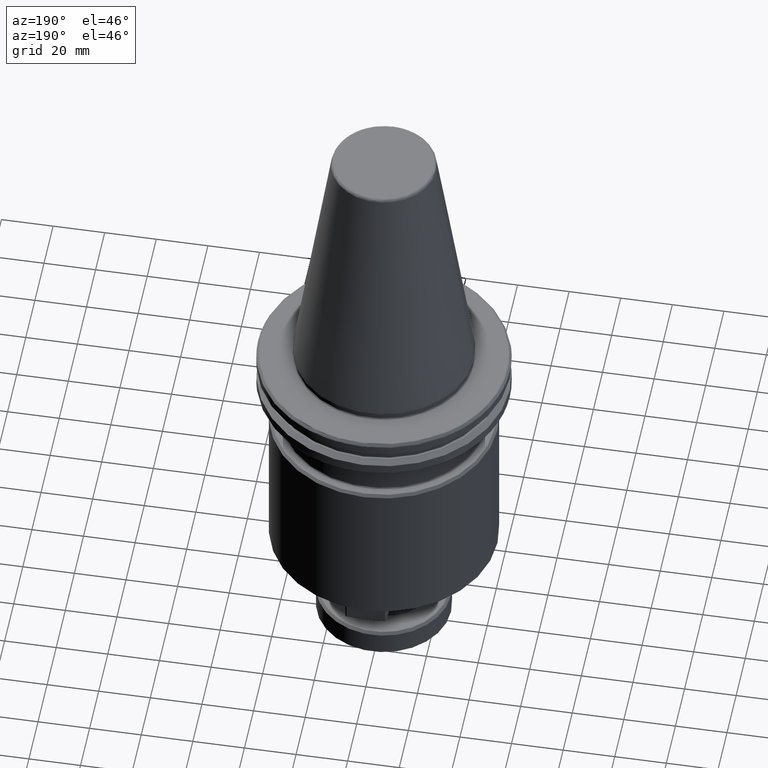
[diagram: clean part render]
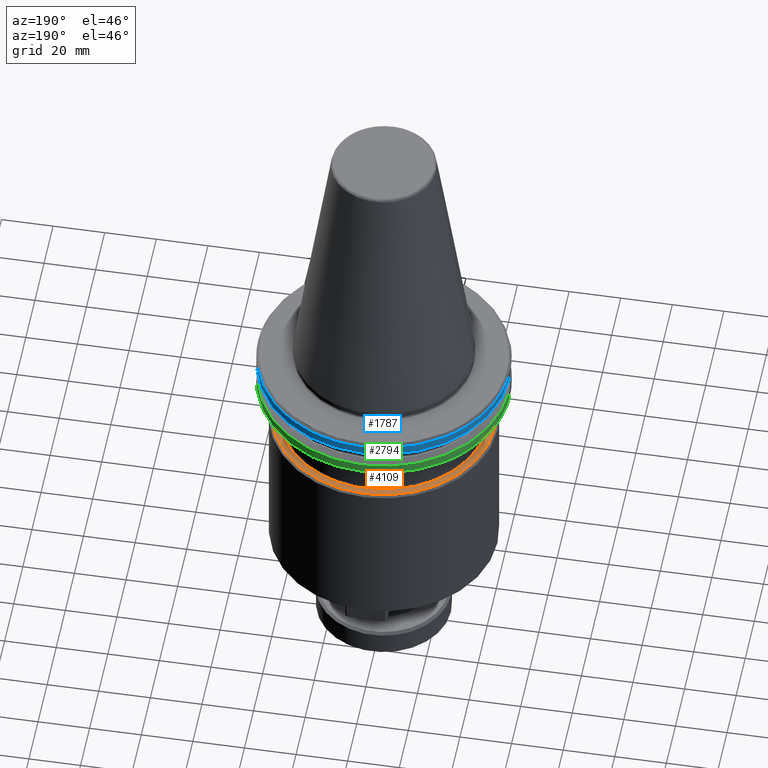
[diagram: same view with three faces highlighted in distinct colors, each labeled with its STEP entity id]
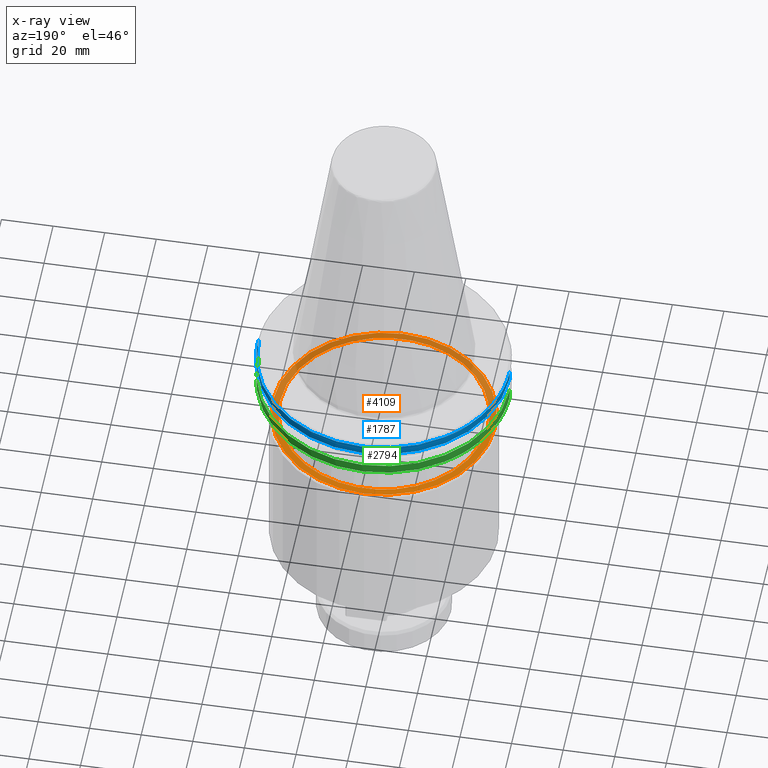
[diagram: x-ray of the same camera — body ghosted, the three highlighted faces saturated]
A machine part, auxiliary view with three faces highlighted in distinct colors.
The next image is the same camera in x-ray (body ghosted, the three faces saturated) — at least one of them is partly hidden behind the body in this view.
Their STEP definitions:

[orange] entity #4109 — the highlighted planar face has unit normal (0, 0, 1).
#1 = CARTESIAN_POINT ( 'NONE',  ( 27.47877465276769700, -29.44334751546200100, -36.00000000000000000 ) ) ;
#16 = CARTESIAN_POINT ( 'NONE',  ( 30.42559452274020900, -26.49644879735163300, -36.00000000000002100 ) ) ;
#25 = CARTESIAN_POINT ( 'NONE',  ( 32.16877327019905400, -24.35065870797694400, -36.00000000000000700 ) ) ;
#32 = CARTESIAN_POINT ( 'NONE',  ( 33.73657857831171500, -21.95252175705745400, -36.00000000000000700 ) ) ;
#41 = CARTESIAN_POINT ( 'NONE',  ( 33.78187863191580200, -21.88274304809957000, -36.00000000000002800 ) ) ;
#46 = CARTESIAN_POINT ( 'NONE',  ( 33.87397371419920200, -21.73992466998428000, -36.00000000000001400 ) ) ;
#49 = CARTESIAN_POINT ( 'NONE',  ( 43.00000000000000000, 5.327213576290986800E-015, -36.00000000000001400 ) ) ;
#59 = CARTESIAN_POINT ( 'NONE',  ( 34.01140211454267600, -21.52532825034847300, -36.00000000000001400 ) ) ;
#62 = CARTESIAN_POINT ( 'NONE',  ( -3.069344483242439500, -40.16603351380932500, -36.00000000000000700 ) ) ;
#69 = CARTESIAN_POINT ( 'NONE',  ( 34.32706882043916600, -21.02202130395821200, -36.00000000000002100 ) ) ;
#78 = CARTESIAN_POINT ( 'NONE',  ( 34.93840398594567600, -20.00507954221737700, -36.00000000000001400 ) ) ;
#82 = CARTESIAN_POINT ( 'NONE',  ( 36.08108133181304600, -17.92988454289456300, -36.00000000000002100 ) ) ;
#87 = CARTESIAN_POINT ( 'NONE',  ( 36.92338822516379100, -16.08032629917587600, -36.00000000000002800 ) ) ;
#89 = VERTEX_POINT ( 'NONE', #4590 ) ;
#99 = CARTESIAN_POINT ( 'NONE',  ( 37.43962258315652700, -14.77629598988695000, -36.00000000000001400 ) ) ;
#103 = CARTESIAN_POINT ( 'NONE',  ( 37.45395370252885000, -14.73992808887791600, -36.00000000000000700 ) ) ;
#113 = CARTESIAN_POINT ( 'NONE',  ( 37.48375026116880100, -14.66399319811055200, -36.00000000000002800 ) ) ;
#121 = CARTESIAN_POINT ( 'NONE',  ( 37.52826707300255300, -14.55003994217960000, -36.00000000000002100 ) ) ;
#131 = CARTESIAN_POINT ( 'NONE',  ( 37.63089345106521200, -14.28379257321479500, -36.00000000000001400 ) ) ;
#139 = CARTESIAN_POINT ( 'NONE',  ( 7.884685358261608100, -39.47078154235134000, -36.00000000000000700 ) ) ;
#143 = CARTESIAN_POINT ( 'NONE',  ( 37.83116147565926500, -13.74987208144826000, -36.00000000000001400 ) ) ;
#148 = CARTESIAN_POINT ( 'NONE',  ( 7.464360927677684100, -39.55184878818283100, -36.00000000000000000 ) ) ;
#155 = CARTESIAN_POINT ( 'NONE',  ( 38.21175859872239000, -12.67632808256734100, -36.00000000000001400 ) ) ;
#158 = CARTESIAN_POINT ( 'NONE',  ( 38.89319714034865400, -10.50642802341421600, -36.00000000000002100 ) ) ;
#168 = CARTESIAN_POINT ( 'NONE',  ( 39.34056325402831100, -8.607407296040731700, -36.00000000000001400 ) ) ;
#179 = CARTESIAN_POINT ( 'NONE',  ( 39.58175166977864700, -7.303959821519272900, -36.00000000000001400 ) ) ;
#185 = CARTESIAN_POINT ( 'NONE',  ( 39.58502697982405000, -7.286184034169322000, -36.00000000000001400 ) ) ;
#191 = CARTESIAN_POINT ( 'NONE',  ( 39.59197186776322800, -7.248351478456967800, -36.00000000000000700 ) ) ;
#194 = CARTESIAN_POINT ( 'NONE',  ( 39.60234818655422400, -7.191598914595593000, -36.00000000000001400 ) ) ;
#199 = CARTESIAN_POINT ( 'NONE',  ( 39.62627250524234100, -7.059150153535913600, -36.00000000000002100 ) ) ;
#208 = CARTESIAN_POINT ( 'NONE',  ( 39.67297277532150400, -6.794148183217227900, -36.00000000000000700 ) ) ;
#220 = EDGE_CURVE ( 'NONE', #667, #4578, #1031, .T. ) ;
#221 = CARTESIAN_POINT ( 'NONE',  ( 39.76177984629173100, -6.263726449782480700, -36.00000000000002100 ) ) ;
#234 = CARTESIAN_POINT ( 'NONE',  ( -39.52524143524903600, -7.604589033503797800, -36.00000000000000700 ) ) ;
#256 = CARTESIAN_POINT ( 'NONE',  ( 39.92102011147973400, -5.201211811723652500, -36.00000000000001400 ) ) ;
#261 = CARTESIAN_POINT ( 'NONE',  ( 40.16600513484590400, -3.069497850848539800, -36.00000000000001400 ) ) ;
#270 = CARTESIAN_POINT ( 'NONE',  ( 40.25000000000000700, -1.230854996228531600, -36.00000000000001400 ) ) ;
#287 = CARTESIAN_POINT ( 'NONE',  ( 40.25000000000000700, 0.0000000000000000000, -36.00000000000002100 ) ) ;
#357 = CARTESIAN_POINT ( 'NONE',  ( 14.85373504937425300, -37.40896518931028000, -36.00000000000002100 ) ) ;
#458 = CARTESIAN_POINT ( 'NONE',  ( 7.364125160715690100, -39.57060203813732400, -36.00000000000002800 ) ) ;
#575 = CARTESIAN_POINT ( 'NONE',  ( 8.443438460447380200, -39.35688100839233500, -36.00000000000000000 ) ) ;
#596 = CARTESIAN_POINT ( 'NONE',  ( -21.95252175705665100, -33.73657857831224000, -36.00000000000002800 ) ) ;
#606 = CARTESIAN_POINT ( 'NONE',  ( -43.00000000000000000, 0.0000000000000000000, -36.00000000000001400 ) ) ;
#667 = VERTEX_POINT ( 'NONE', #606 ) ;
#716 = CARTESIAN_POINT ( 'NONE',  ( -14.77629598988684200, -37.43962258315660600, -36.00000000000001400 ) ) ;
#1013 = CARTESIAN_POINT ( 'NONE',  ( -14.73992808887794400, -37.45395370252889200, -36.00000000000000700 ) ) ;
#1031 = CIRCLE ( 'NONE', #1321, 43.00000000000000000 ) ;
#1066 = CARTESIAN_POINT ( 'NONE',  ( 20.88689232753803900, -34.43328717492420300, -36.00000000000002100 ) ) ;
#1185 = ORIENTED_EDGE ( 'NONE', *, *, #1851, .T. ) ;
#1191 = CARTESIAN_POINT ( 'NONE',  ( -7.059131581677365700, -39.62627594175742700, -36.00000000000001400 ) ) ;
#1321 = AXIS2_PLACEMENT_3D ( 'NONE', #3928, #4032, #3235 ) ;
#1325 = CARTESIAN_POINT ( 'NONE',  ( -37.39262267274995800, -14.89483283162965700, -36.00000000000002800 ) ) ;
#1371 = CARTESIAN_POINT ( 'NONE',  ( -33.64255571102902600, -22.09633633913924600, -36.00000000000002100 ) ) ;
#1384 = FACE_OUTER_BOUND ( 'NONE', #3825, .T. ) ;
#1411 = PLANE ( 'NONE',  #2133 ) ;
#1438 = CARTESIAN_POINT ( 'NONE',  ( -37.31360744143203300, -15.09206041371895600, -36.00000000000000000 ) ) ;
#1459 = CARTESIAN_POINT ( 'NONE',  ( -37.90442482822960100, -13.60227639566541300, -36.00000000000002800 ) ) ;
#1464 = CARTESIAN_POINT ( 'NONE',  ( 40.25000000000000000, 2.462065532875441100, -36.00000000000000700 ) ) ;
#1473 = CARTESIAN_POINT ( 'NONE',  ( 40.02601369292237600, 4.903403152738355300, -36.00000000000002100 ) ) ;
#1478 = CARTESIAN_POINT ( 'NONE',  ( 40.25000000000000700, 0.0000000000000000000, -36.00000000000002100 ) ) ;
#1483 = CARTESIAN_POINT ( 'NONE',  ( 39.57060203813654200, 7.364125160719250800, -36.00000000000001400 ) ) ;
#1491 = CARTESIAN_POINT ( 'NONE',  ( 39.56311852654026500, 7.404224608748156000, -36.00000000000002800 ) ) ;
#1497 = CARTESIAN_POINT ( 'NONE',  ( 39.55184878818014500, 7.464360927689994300, -36.00000000000001400 ) ) ;
#1498 = CARTESIAN_POINT ( 'NONE',  ( -35.45831428506005500, -19.13199457867254700, -36.00000000000001400 ) ) ;
#1501 = CARTESIAN_POINT ( 'NONE',  ( 39.35688100837312200, 8.443438460534928000, -36.00000000000001400 ) ) ;
#1502 = CARTESIAN_POINT ( 'NONE',  ( 39.57454129271903300, 7.342923872923597300, -36.00000000000002100 ) ) ;
#1510 = CARTESIAN_POINT ( 'NONE',  ( 39.47078154234106500, 7.884685358308526100, -36.00000000000001400 ) ) ;
#1521 = CARTESIAN_POINT ( 'NONE',  ( 39.10915694781174800, 9.555186475507962700, -36.00000000000001400 ) ) ;
#1528 = CARTESIAN_POINT ( 'NONE',  ( 39.52524143524681200, 7.604589033510337400, -36.00000000000001400 ) ) ;
#1529 = CARTESIAN_POINT ( 'NONE',  ( 38.53401685618693100, 11.75564974753479000, -36.00000000000001400 ) ) ;
#1531 = CARTESIAN_POINT ( 'NONE',  ( -33.59380582484494900, -22.17039255038807300, -36.00000000000001400 ) ) ;
#1536 = CARTESIAN_POINT ( 'NONE',  ( 37.90442482821915600, 13.60227639569623800, -36.00000000000001400 ) ) ;
#1541 = CARTESIAN_POINT ( 'NONE',  ( 37.39262267274632700, 14.89483283163853300, -36.00000000000002100 ) ) ;
#1546 = CARTESIAN_POINT ( 'NONE',  ( 37.36108790807685400, 14.97376093274821900, -36.00000000000002100 ) ) ;
#1547 = CARTESIAN_POINT ( 'NONE',  ( 37.40896518931107600, 14.85373504937066800, -36.00000000000001400 ) ) ;
#1554 = CARTESIAN_POINT ( 'NONE',  ( 37.31360744141965600, 15.09206041374926800, -36.00000000000001400 ) ) ;
#1557 = CARTESIAN_POINT ( 'NONE',  ( 37.20157144831554100, 15.36744384144078700, -36.00000000000001400 ) ) ;
#1560 = CARTESIAN_POINT ( 'NONE',  ( 36.97250651182446300, 15.91561591824668500, -36.00000000000002100 ) ) ;
#1562 = CARTESIAN_POINT ( 'NONE',  ( 35.45831428495778000, 19.13199457892287500, -36.00000000000001400 ) ) ;
#1569 = CARTESIAN_POINT ( 'NONE',  ( 34.43328717483962000, 20.88689232769868600, -36.00000000000002100 ) ) ;
#1570 = CARTESIAN_POINT ( 'NONE',  ( 36.49440483771081000, 17.00158095755007200, -36.00000000000002800 ) ) ;
#1575 = CARTESIAN_POINT ( 'NONE',  ( 33.59380582483219500, 22.17039255040083000, -36.00000000000002100 ) ) ;
#1580 = CARTESIAN_POINT ( 'NONE',  ( 33.49789215118777000, 22.31506301959912600, -36.00000000000001400 ) ) ;
#1584 = CARTESIAN_POINT ( 'NONE',  ( 33.35337146879525200, 22.53153921594603300, -36.00000000000000700 ) ) ;
#1587 = CARTESIAN_POINT ( 'NONE',  ( -29.44334751551367200, -27.47877465271158600, -36.00000000000002100 ) ) ;
#1595 = CARTESIAN_POINT ( 'NONE',  ( 30.83357486787290100, 25.93758776423166500, -36.00000000000001400 ) ) ;
#1602 = CARTESIAN_POINT ( 'NONE',  ( 33.64255571103268500, 22.09633633913033200, -36.00000000000002100 ) ) ;
#1609 = CARTESIAN_POINT ( 'NONE',  ( 32.30986826767870200, 24.02092672529830600, -36.00000000000002100 ) ) ;
#1610 = CARTESIAN_POINT ( 'NONE',  ( 29.44334751541017100, 27.47877465281506900, -36.00000000000001400 ) ) ;
#1616 = CARTESIAN_POINT ( 'NONE',  ( 33.01160533973141800, 23.03294378860174200, -36.00000000000002100 ) ) ;
#1617 = CARTESIAN_POINT ( 'NONE',  ( 26.49644879745528000, 30.42559452264550800, -36.00000000000002100 ) ) ;
#1623 = CARTESIAN_POINT ( 'NONE',  ( 24.35065870793343400, 32.16877327025154200, -36.00000000000002100 ) ) ;
#1627 = CARTESIAN_POINT ( 'NONE',  ( 21.88274304809481700, 33.78187863191745800, -36.00000000000001400 ) ) ;
#1629 = CARTESIAN_POINT ( 'NONE',  ( 21.73992466997501400, 33.87397371420245700, -36.00000000000002100 ) ) ;
#1636 = CARTESIAN_POINT ( 'NONE',  ( 21.95252175705882200, 33.73657857831006600, -36.00000000000002100 ) ) ;
#1637 = CARTESIAN_POINT ( 'NONE',  ( 21.52532825033266300, 34.01140211454819000, -36.00000000000001400 ) ) ;
#1640 = CARTESIAN_POINT ( 'NONE',  ( 21.02202130392870700, 34.32706882044947600, -36.00000000000002100 ) ) ;
#1644 = CARTESIAN_POINT ( 'NONE',  ( 20.00507954216676500, 34.93840398596334800, -36.00000000000002100 ) ) ;
#1645 = CARTESIAN_POINT ( 'NONE',  ( 16.08032629913729000, 36.92338822517727700, -36.00000000000001400 ) ) ;
#1651 = CARTESIAN_POINT ( 'NONE',  ( 14.77629598988813500, 37.43962258315613000, -36.00000000000002100 ) ) ;
#1652 = CARTESIAN_POINT ( 'NONE',  ( 17.92988454282707900, 36.08108133183655800, -36.00000000000000700 ) ) ;
#1663 = CARTESIAN_POINT ( 'NONE',  ( 14.66399319812578600, 37.48375026116298200, -36.00000000000002100 ) ) ;
#1673 = CARTESIAN_POINT ( 'NONE',  ( 14.55003994220595600, 37.52826707299248500, -36.00000000000001400 ) ) ;
#1675 = CARTESIAN_POINT ( 'NONE',  ( 14.28379257326582400, 37.63089345104575000, -36.00000000000000700 ) ) ;
#1681 = CARTESIAN_POINT ( 'NONE',  ( 10.50642802363199200, 38.89319714026549900, -36.00000000000000700 ) ) ;
#1685 = CARTESIAN_POINT ( 'NONE',  ( 14.73992808888561400, 37.45395370252592200, -36.00000000000000700 ) ) ;
#1687 = CARTESIAN_POINT ( 'NONE',  ( 12.67632808273066700, 38.21175859866005500, -36.00000000000001400 ) ) ;
#1692 = CARTESIAN_POINT ( 'NONE',  ( 8.607407296165163800, 39.34056325398078300, -36.00000000000002100 ) ) ;
#1693 = CARTESIAN_POINT ( 'NONE',  ( 13.74987208154353600, 37.83116147562289900, -36.00000000000002100 ) ) ;
#1698 = CARTESIAN_POINT ( 'NONE',  ( 7.303959821517324300, 39.58175166977941500, -36.00000000000001400 ) ) ;
#1703 = CARTESIAN_POINT ( 'NONE',  ( 7.286181306162789400, 39.58502748461192800, -36.00000000000000700 ) ) ;
#1705 = CARTESIAN_POINT ( 'NONE',  ( 7.191589478902454100, 39.60234993252648600, -36.00000000000001400 ) ) ;
#1712 = CARTESIAN_POINT ( 'NONE',  ( 7.059131581695457800, 39.62627594175914000, -36.00000000000001400 ) ) ;
#1720 = CARTESIAN_POINT ( 'NONE',  ( 7.248346054538112400, 39.59197287140033000, -36.00000000000001400 ) ) ;
#1721 = CARTESIAN_POINT ( 'NONE',  ( 6.794112237719550000, 39.67297942664437500, -36.00000000000001400 ) ) ;
#1729 = CARTESIAN_POINT ( 'NONE',  ( 6.263659351520183300, 39.76179226209441700, -36.00000000000001400 ) ) ;
#1741 = CARTESIAN_POINT ( 'NONE',  ( 5.201096786131138600, 39.92104139571291200, -36.00000000000001400 ) ) ;
#1748 = CARTESIAN_POINT ( 'NONE',  ( 1.230767357681863600, 40.25001621655860600, -36.00000000000000700 ) ) ;
#1750 = CARTESIAN_POINT ( 'NONE',  ( -2.461534715363743200, 40.24996756688282300, -36.00000000000002100 ) ) ;
#1755 = CARTESIAN_POINT ( 'NONE',  ( 3.069344483391865700, 40.16603351382344300, -36.00000000000000700 ) ) ;
#1762 = CARTESIAN_POINT ( 'NONE',  ( -7.342922503378693100, 39.57454154617544600, -36.00000000000002100 ) ) ;
#1763 = CARTESIAN_POINT ( 'NONE',  ( -36.97250651186918400, -15.91561591813714700, -36.00000000000000700 ) ) ;
#1767 = CARTESIAN_POINT ( 'NONE',  ( -7.364125160715973500, 39.57060203813752300, -36.00000000000001400 ) ) ;
#1777 = CARTESIAN_POINT ( 'NONE',  ( -14.55003994217967600, -37.52826707300269500, -36.00000000000000700 ) ) ;
#1778 = CARTESIAN_POINT ( 'NONE',  ( -40.25000000000000700, 5.733079581503750100E-015, -36.00000000000002100 ) ) ;
#1781 = CARTESIAN_POINT ( 'NONE',  ( 13.60227639558186800, -37.90442482824426700, -36.00000000000001400 ) ) ;
#1785 = CARTESIAN_POINT ( 'NONE',  ( -7.404224608741643000, 39.56311852654222600, -36.00000000000002100 ) ) ;
#1788 = CARTESIAN_POINT ( 'NONE',  ( -7.884685358265388200, 39.47078154235416000, -36.00000000000000700 ) ) ;
#1795 = CARTESIAN_POINT ( 'NONE',  ( -4.903578454485642400, 40.02598125050141000, -36.00000000000001400 ) ) ;
#1800 = CARTESIAN_POINT ( 'NONE',  ( -7.604589033488045900, 39.52524143525355500, -36.00000000000001400 ) ) ;
#1808 = CARTESIAN_POINT ( 'NONE',  ( -8.443438460454448300, 39.35688100839760800, -36.00000000000001400 ) ) ;
#1810 = CARTESIAN_POINT ( 'NONE',  ( -7.464360927678674400, 39.55184878818358400, -36.00000000000001400 ) ) ;
#1816 = CARTESIAN_POINT ( 'NONE',  ( 14.89483283162858400, -37.39262267275155000, -36.00000000000001400 ) ) ;
#1819 = CARTESIAN_POINT ( 'NONE',  ( -9.555186475369971800, 39.10915694785376200, -36.00000000000001400 ) ) ;
#1821 = CARTESIAN_POINT ( 'NONE',  ( 11.75564974733466000, -38.53401685623089900, -36.00000000000002100 ) ) ;
#1826 = CARTESIAN_POINT ( 'NONE',  ( -11.75564974735080200, 38.53401685624287900, -36.00000000000001400 ) ) ;
#1827 = CARTESIAN_POINT ( 'NONE',  ( -14.85373504937395200, 37.40896518931008100, -36.00000000000002800 ) ) ;
#1832 = CARTESIAN_POINT ( 'NONE',  ( -14.89483283163263600, 37.39262267274928300, -36.00000000000002100 ) ) ;
#1833 = CARTESIAN_POINT ( 'NONE',  ( 22.09633633914035000, -33.64255571102737000, -36.00000000000002100 ) ) ;
#1834 = CARTESIAN_POINT ( 'NONE',  ( -13.60227639559108300, 37.90442482825112300, -36.00000000000001400 ) ) ;
#1835 = CARTESIAN_POINT ( 'NONE',  ( -14.97376093273656000, 37.36108790808268800, -36.00000000000002100 ) ) ;
#1839 = CARTESIAN_POINT ( 'NONE',  ( -15.09206041372912000, 37.31360744142976700, -36.00000000000000700 ) ) ;
#1846 = CARTESIAN_POINT ( 'NONE',  ( -15.36744384140177500, 37.20157144833508100, -36.00000000000001400 ) ) ;
#1851 = EDGE_CURVE ( 'NONE', #89, #2761, #2485, .T. ) ;
#1858 = CARTESIAN_POINT ( 'NONE',  ( -17.00158095742525800, 36.49440483777338100, -36.00000000000001400 ) ) ;
#1865 = CARTESIAN_POINT ( 'NONE',  ( -19.13199457875650100, 35.45831428504122600, -36.00000000000001400 ) ) ;
#1866 = ORIENTED_EDGE ( 'NONE', *, *, #220, .T. ) ;
#1886 = CARTESIAN_POINT ( 'NONE',  ( -15.91561591817390200, 36.97250651186094200, -36.00000000000001400 ) ) ;
#1891 = CARTESIAN_POINT ( 'NONE',  ( -24.02092672522525500, 32.30986826774586300, -36.00000000000002100 ) ) ;
#1892 = CARTESIAN_POINT ( 'NONE',  ( -20.88689232760361500, 34.43328717488729800, -36.00000000000002100 ) ) ;
#1896 = DIRECTION ( 'NONE',  ( 0.0000000000000000000, 0.0000000000000000000, 1.000000000000000000 ) ) ;
#1897 = CARTESIAN_POINT ( 'NONE',  ( -23.03294378855914800, 33.01160533977060400, -36.00000000000001400 ) ) ;
#1907 = CARTESIAN_POINT ( 'NONE',  ( -25.93758776413428900, 30.83357486796245100, -36.00000000000001400 ) ) ;
#1913 = CARTESIAN_POINT ( 'NONE',  ( -22.53153921592318900, 33.35337146881626300, -36.00000000000001400 ) ) ;
#1919 = B_SPLINE_CURVE_WITH_KNOTS ( 'NONE', 3,
 ( #2260, #2089, #2061, #2073, #2055, #2052, #2051, #2044, #2040, #2047, #2039, #2036, #2030, #2010, #2023, #2034, #2003, #1995, #1989, #2016, #1975, #1974, #1982, #1969, #1964, #1954, #1946, #1939, #1951, #1926, #1920, #1907, #1891, #1897, #1913, #4056, #4048, #4041, #1892, #1865, #1858, #1886, #1846, #1839, #1835, #1832, #1827, #1834, #1826, #1819, #1808, #1788, #1800, #1810, #1785, #1767, #1762, #1795, #1750, #1748, #1755, #1741, #1729, #1721, #1712, #1705, #1720, #1703, #1698, #1692, #1681, #1687, #1693, #1675, #1673, #1663, #1685, #1651, #1645, #1652, #1644, #1640, #1637, #1629, #1627, #1636, #1623, #1617, #1610, #1595, #1609, #1616, #1584, #1580, #1575, #1602, #1569, #1562, #1570, #1560, #1557, #1554, #1546, #1541, #1547, #1536, #1529, #1521, #1501, #1510, #1528, #1497, #1491, #1483, #1502, #1473, #1464, #1478 ),
 .UNSPECIFIED., .F., .F.,
 ( 4, 1, 1, 1, 1, 1, 1, 2, 2, 1, 1, 1, 1, 1, 2, 2, 1, 1, 1, 1, 2, 2, 2, 1, 1, 1, 1, 2, 2, 1, 1, 1, 1, 1, 2, 2, 1, 1, 1, 1, 1, 1, 2, 2, 2, 1, 1, 1, 1, 1, 1, 2, 2, 1, 1, 1, 1, 1, 2, 2, 1, 1, 1, 1, 2, 2, 2, 1, 1, 1, 1, 2, 2, 1, 1, 1, 1, 1, 2, 2, 1, 1, 1, 1, 1, 1, 2, 2, 4 ),
 ( 0.0000000000000000000, 0.03125000000000027800, 0.04687500000000041600, 0.05468750000000047200, 0.05859375000000050000, 0.06054687500000054100, 0.06152343750000056200, 0.06201171875000055500, 0.06250000000000055500, 0.09375000000000116600, 0.1093750000000015000, 0.1171875000000016400, 0.1210937500000016800, 0.1230468750000016800, 0.1240234375000016700, 0.1250000000000016700, 0.1562500000000016400, 0.1718750000000016700, 0.1796875000000016900, 0.1835937500000016900, 0.1855468750000017200, 0.1875000000000017800, 0.2500000000000016700, 0.2812500000000016700, 0.2968750000000016100, 0.3046875000000016100, 0.3085937500000015500, 0.3105468750000016100, 0.3125000000000016100, 0.3437500000000011700, 0.3593750000000010000, 0.3671875000000010000, 0.3710937500000009400, 0.3730468750000009400, 0.3740234375000008900, 0.3750000000000008300, 0.4062500000000009400, 0.4218750000000009400, 0.4296875000000010000, 0.4335937500000009400, 0.4355468750000010000, 0.4365234375000010000, 0.4370117187500010000, 0.4375000000000010000, 0.4999999999999996100, 0.5312499999999988900, 0.5468749999999986700, 0.5546874999999984500, 0.5585937499999984500, 0.5605468749999983300, 0.5615234374999983300, 0.5620117187499983300, 0.5624999999999983300, 0.5937499999999968900, 0.6093749999999963400, 0.6171874999999958900, 0.6210937499999958900, 0.6230468749999957800, 0.6240234374999957800, 0.6249999999999957800, 0.6562499999999952300, 0.6718749999999951200, 0.6796874999999950000, 0.6835937499999951200, 0.6855468749999951200, 0.6874999999999951200, 0.7499999999999965600, 0.7812499999999972200, 0.7968749999999977800, 0.8046874999999978900, 0.8085937499999980000, 0.8105468749999980000, 0.8124999999999980000, 0.8437499999999982200, 0.8593749999999984500, 0.8671874999999983300, 0.8710937499999984500, 0.8730468749999984500, 0.8740234374999984500, 0.8749999999999984500, 0.9062499999999991100, 0.9218749999999995600, 0.9296874999999996700, 0.9335937499999997800, 0.9355468749999997800, 0.9365234374999997800, 0.9370117187499997800, 0.9374999999999997800, 1.000000000000000000 ),
 .UNSPECIFIED. ) ;
#1920 = CARTESIAN_POINT ( 'NONE',  ( -27.47877465275943400, 29.44334751546132600, -36.00000000000000700 ) ) ;
#1921 = CARTESIAN_POINT ( 'NONE',  ( -17.92988454290069500, -36.08108133180901700, -36.00000000000001400 ) ) ;
#1926 = CARTESIAN_POINT ( 'NONE',  ( -30.42559452275675000, 26.49644879735299700, -36.00000000000002800 ) ) ;
#1939 = CARTESIAN_POINT ( 'NONE',  ( -33.73657857831546600, 21.95252175705313400, -36.00000000000002100 ) ) ;
#1941 = CARTESIAN_POINT ( 'NONE',  ( 9.555186475357873000, -39.10915694784473100, -36.00000000000001400 ) ) ;
#1946 = CARTESIAN_POINT ( 'NONE',  ( -33.78187863191587300, 21.88274304810218900, -36.00000000000001400 ) ) ;
#1951 = CARTESIAN_POINT ( 'NONE',  ( -32.16877327007881600, 24.35065870811508400, -36.00000000000000000 ) ) ;
#1954 = CARTESIAN_POINT ( 'NONE',  ( -33.87397371419935900, 21.73992466998939200, -36.00000000000000700 ) ) ;
#1964 = CARTESIAN_POINT ( 'NONE',  ( -34.01140211454293900, 21.52532825035724100, -36.00000000000001400 ) ) ;
#1969 = CARTESIAN_POINT ( 'NONE',  ( -34.32706882043967800, 21.02202130397453000, -36.00000000000002100 ) ) ;
#1974 = CARTESIAN_POINT ( 'NONE',  ( -36.08108133181423200, 17.92988454293191600, -36.00000000000000700 ) ) ;
#1975 = CARTESIAN_POINT ( 'NONE',  ( -36.92338822516450100, 16.08032629919722500, -36.00000000000002100 ) ) ;
#1982 = CARTESIAN_POINT ( 'NONE',  ( -34.93840398594657900, 20.00507954224540400, -36.00000000000001400 ) ) ;
#1989 = CARTESIAN_POINT ( 'NONE',  ( -37.45395370252936100, 14.73992808887532400, -36.00000000000001400 ) ) ;
#1995 = CARTESIAN_POINT ( 'NONE',  ( -37.48375026116976000, 14.66399319810543600, -36.00000000000002100 ) ) ;
#2003 = CARTESIAN_POINT ( 'NONE',  ( -37.52826707300420100, 14.55003994217077000, -36.00000000000001400 ) ) ;
#2010 = CARTESIAN_POINT ( 'NONE',  ( -38.21175859873252300, 12.67632808251276600, -36.00000000000001400 ) ) ;
#2016 = CARTESIAN_POINT ( 'NONE',  ( -37.43962258315653500, 14.77629598988626600, -36.00000000000002100 ) ) ;
#2023 = CARTESIAN_POINT ( 'NONE',  ( -37.83116147566518400, 13.74987208141639900, -36.00000000000001400 ) ) ;
#2030 = CARTESIAN_POINT ( 'NONE',  ( -38.89319714036211900, 10.50642802334145500, -36.00000000000001400 ) ) ;
#2034 = CARTESIAN_POINT ( 'NONE',  ( -37.63089345106838100, 14.28379257319774200, -36.00000000000000700 ) ) ;
#2036 = CARTESIAN_POINT ( 'NONE',  ( -39.34056325403598500, 8.607407295999149000, -36.00000000000001400 ) ) ;
#2039 = CARTESIAN_POINT ( 'NONE',  ( -39.58175166977852700, 7.303959821519924000, -36.00000000000001400 ) ) ;
#2040 = CARTESIAN_POINT ( 'NONE',  ( -39.59197186776322800, 7.248351478456960700, -36.00000000000002100 ) ) ;
#2044 = CARTESIAN_POINT ( 'NONE',  ( -39.60234818655423100, 7.191598914595599200, -36.00000000000001400 ) ) ;
#2047 = CARTESIAN_POINT ( 'NONE',  ( -39.58502697982406500, 7.286184034169313200, -36.00000000000001400 ) ) ;
#2051 = CARTESIAN_POINT ( 'NONE',  ( -39.62627250524234800, 7.059150153535923300, -36.00000000000002800 ) ) ;
#2052 = CARTESIAN_POINT ( 'NONE',  ( -39.67297277532151200, 6.794148183217218100, -36.00000000000002100 ) ) ;
#2055 = CARTESIAN_POINT ( 'NONE',  ( -39.76177984629173100, 6.263726449782489600, -36.00000000000002100 ) ) ;
#2061 = CARTESIAN_POINT ( 'NONE',  ( -40.16600513484589600, 3.069497850848536200, -36.00000000000001400 ) ) ;
#2073 = CARTESIAN_POINT ( 'NONE',  ( -39.92102011147973400, 5.201211811723654300, -36.00000000000001400 ) ) ;
#2089 = CARTESIAN_POINT ( 'NONE',  ( -40.25000000000002100, 1.230854996228538400, -36.00000000000002100 ) ) ;
#2122 = CARTESIAN_POINT ( 'NONE',  ( -40.02601369292236900, -4.903403152689949500, -36.00000000000001400 ) ) ;
#2133 = AXIS2_PLACEMENT_3D ( 'NONE', #3114, #1896, #4487 ) ;
#2142 = CARTESIAN_POINT ( 'NONE',  ( -26.49644879724831300, -30.42559452285249600, -36.00000000000002100 ) ) ;
#2155 = CARTESIAN_POINT ( 'NONE',  ( -39.55184878818126000, -7.464360927686678700, -36.00000000000000700 ) ) ;
#2184 = CARTESIAN_POINT ( 'NONE',  ( -21.52532825034992200, -34.01140211454174500, -36.00000000000001400 ) ) ;
#2204 = CARTESIAN_POINT ( 'NONE',  ( -33.35337146883773600, -22.53153921590356000, -36.00000000000001400 ) ) ;
#2224 = CARTESIAN_POINT ( 'NONE',  ( 22.53153921592659300, -33.35337146881653300, -36.00000000000001400 ) ) ;
#2243 = CARTESIAN_POINT ( 'NONE',  ( 22.31506301958771800, -33.49789215120024700, -36.00000000000001400 ) ) ;
#2260 = CARTESIAN_POINT ( 'NONE',  ( -40.25000000000000700, 5.733079581503750100E-015, -36.00000000000002100 ) ) ;
#2277 = CARTESIAN_POINT ( 'NONE',  ( -40.25000000000002800, -2.462065532826934500, -36.00000000000002800 ) ) ;
#2296 = EDGE_CURVE ( 'NONE', #4578, #667, #4639, .T. ) ;
#2318 = CARTESIAN_POINT ( 'NONE',  ( -37.36108790808399500, -14.97376093273067400, -36.00000000000000700 ) ) ;
#2337 = ORIENTED_EDGE ( 'NONE', *, *, #2296, .T. ) ;
#2423 = DIRECTION ( 'NONE',  ( -1.000000000000000000, 0.0000000000000000000, 0.0000000000000000000 ) ) ;
#2428 = DIRECTION ( 'NONE',  ( -0.0000000000000000000, -0.0000000000000000000, 1.000000000000000000 ) ) ;
#2430 = CARTESIAN_POINT ( 'NONE',  ( 0.0000000000000000000, 0.0000000000000000000, -36.00000000000001400 ) ) ;
#2441 = EDGE_CURVE ( 'NONE', #2761, #89, #1919, .T. ) ;
#2445 = CARTESIAN_POINT ( 'NONE',  ( -34.43328717489804100, -20.88689232755564600, -36.00000000000000700 ) ) ;
#2457 = CARTESIAN_POINT ( 'NONE',  ( -14.66399319811059400, -37.48375026116885800, -36.00000000000002100 ) ) ;
#2485 = B_SPLINE_CURVE_WITH_KNOTS ( 'NONE', 3,
 ( #287, #270, #261, #256, #221, #208, #199, #194, #191, #185, #179, #168, #158, #155, #143, #131, #121, #113, #103, #99, #87, #82, #78, #69, #59, #46, #41, #32, #25, #16, #1, #3666, #3563, #3857, #2224, #2243, #3493, #1833, #1066, #4395, #4393, #4215, #4995, #4854, #2691, #1816, #357, #1781, #1821, #1941, #575, #139, #3912, #148, #4895, #458, #4192, #4922, #3498, #3545, #62, #2942, #3654, #4694, #1191, #4254, #4156, #4313, #4899, #2652, #3939, #2568, #3876, #4705, #1777, #2457, #1013, #716, #4411, #1921, #2853, #4203, #2184, #4467, #4299, #596, #2606, #2142, #1587, #4588, #3767, #3420, #2204, #3931, #1531, #1371, #2445, #1498, #3967, #1763, #4766, #1438, #2318, #1325, #4256, #1459, #4510, #2833, #3364, #4820, #234, #2155, #4332, #2515, #4023, #2122, #2277, #4982 ),
 .UNSPECIFIED., .F., .F.,
 ( 4, 1, 1, 1, 1, 1, 1, 2, 2, 1, 1, 1, 1, 1, 2, 2, 1, 1, 1, 1, 2, 2, 2, 1, 1, 1, 1, 2, 2, 1, 1, 1, 1, 1, 2, 2, 1, 1, 1, 1, 1, 1, 2, 2, 2, 1, 1, 1, 1, 1, 1, 2, 2, 1, 1, 1, 1, 1, 2, 2, 1, 1, 1, 1, 2, 2, 2, 1, 1, 1, 1, 2, 2, 1, 1, 1, 1, 1, 2, 2, 1, 1, 1, 1, 1, 1, 2, 2, 4 ),
 ( 0.0000000000000000000, 0.03125000000000197800, 0.04687500000000297000, 0.05468750000000344200, 0.05859375000000367100, 0.06054687500000380300, 0.06152343750000387200, 0.06201171875000389300, 0.06250000000000390000, 0.09375000000000605100, 0.1093750000000071300, 0.1171875000000076700, 0.1210937500000079200, 0.1230468750000080400, 0.1240234375000081000, 0.1250000000000081600, 0.1562500000000095500, 0.1718750000000102100, 0.1796875000000105700, 0.1835937500000107700, 0.1855468750000108500, 0.1875000000000109400, 0.2500000000000133200, 0.2812500000000146000, 0.2968750000000152100, 0.3046875000000155400, 0.3085937500000156500, 0.3105468750000156500, 0.3125000000000156500, 0.3437500000000142100, 0.3593750000000136000, 0.3671875000000133200, 0.3710937500000131600, 0.3730468750000130500, 0.3740234375000129900, 0.3750000000000129300, 0.4062500000000126600, 0.4218750000000125500, 0.4296875000000124900, 0.4335937500000124300, 0.4355468750000124900, 0.4365234375000124900, 0.4370117187500124300, 0.4375000000000124300, 0.5000000000000102100, 0.5312500000000092100, 0.5468750000000086600, 0.5546875000000083300, 0.5585937500000082200, 0.5605468750000082200, 0.5615234375000081000, 0.5620117187500079900, 0.5625000000000079900, 0.5937500000000060000, 0.6093750000000051100, 0.6171875000000046600, 0.6210937500000044400, 0.6230468750000043300, 0.6240234375000043300, 0.6250000000000042200, 0.6562500000000028900, 0.6718750000000022200, 0.6796875000000017800, 0.6835937500000016700, 0.6855468750000015500, 0.6875000000000014400, 0.7499999999999985600, 0.7812499999999971100, 0.7968749999999964500, 0.8046874999999961100, 0.8085937499999960000, 0.8105468749999958900, 0.8124999999999957800, 0.8437499999999955600, 0.8593749999999954500, 0.8671874999999953400, 0.8710937499999954500, 0.8730468749999954500, 0.8740234374999953400, 0.8749999999999953400, 0.9062499999999960000, 0.9218749999999962300, 0.9296874999999964500, 0.9335937499999964500, 0.9355468749999964500, 0.9365234374999965600, 0.9370117187499965600, 0.9374999999999965600, 1.000000000000000000 ),
 .UNSPECIFIED. ) ;
#2515 = CARTESIAN_POINT ( 'NONE',  ( -39.57060203813685500, -7.364125160718294300, -36.00000000000002100 ) ) ;
#2568 = CARTESIAN_POINT ( 'NONE',  ( -12.67632808256783000, -38.21175859872336400, -36.00000000000001400 ) ) ;
#2606 = CARTESIAN_POINT ( 'NONE',  ( -24.35065870800278600, -32.16877327018218600, -36.00000000000002100 ) ) ;
#2652 = CARTESIAN_POINT ( 'NONE',  ( -8.607407296041095900, -39.34056325402903600, -36.00000000000001400 ) ) ;
#2691 = CARTESIAN_POINT ( 'NONE',  ( 14.97376093272854000, -37.36108790808720000, -36.00000000000002800 ) ) ;
#2761 = VERTEX_POINT ( 'NONE', #1778 ) ;
#2833 = CARTESIAN_POINT ( 'NONE',  ( -39.10915694782548300, -9.555186475467568400, -36.00000000000001400 ) ) ;
#2853 = CARTESIAN_POINT ( 'NONE',  ( -20.00507954222197400, -34.93840398594267100, -36.00000000000001400 ) ) ;
#2942 = CARTESIAN_POINT ( 'NONE',  ( -5.201096786019070000, -39.92104139570231800, -36.00000000000001400 ) ) ;
#3114 = CARTESIAN_POINT ( 'NONE',  ( 0.0000000000000000000, -43.00000000000000000, -36.00000000000001400 ) ) ;
#3235 = DIRECTION ( 'NONE',  ( -1.000000000000000000, 0.0000000000000000000, 0.0000000000000000000 ) ) ;
#3355 = FACE_BOUND ( 'NONE', #3519, .T. ) ;
#3364 = CARTESIAN_POINT ( 'NONE',  ( -39.35688100838109400, -8.443438460511366400, -36.00000000000000000 ) ) ;
#3420 = CARTESIAN_POINT ( 'NONE',  ( -33.01160533981070000, -23.03294378852248400, -36.00000000000000700 ) ) ;
#3493 = CARTESIAN_POINT ( 'NONE',  ( 22.17039255039497500, -33.59380582483859700, -36.00000000000001400 ) ) ;
#3498 = CARTESIAN_POINT ( 'NONE',  ( 2.461534715192958100, -40.24996756689893800, -36.00000000000002800 ) ) ;
#3519 = EDGE_LOOP ( 'NONE', ( #3720, #1185 ) ) ;
#3545 = CARTESIAN_POINT ( 'NONE',  ( -1.230767357596477700, -40.25001621655055600, -36.00000000000001400 ) ) ;
#3563 = CARTESIAN_POINT ( 'NONE',  ( 24.02092672523610500, -32.30986826774677900, -36.00000000000002800 ) ) ;
#3654 = CARTESIAN_POINT ( 'NONE',  ( -6.263659351454819600, -39.76179226208825000, -36.00000000000001400 ) ) ;
#3666 = CARTESIAN_POINT ( 'NONE',  ( 25.93758776414876600, -30.83357486796364100, -36.00000000000002800 ) ) ;
#3720 = ORIENTED_EDGE ( 'NONE', *, *, #2441, .T. ) ;
#3767 = CARTESIAN_POINT ( 'NONE',  ( -32.30986826781460100, -24.02092672516240400, -36.00000000000001400 ) ) ;
#3825 = EDGE_LOOP ( 'NONE', ( #1866, #2337 ) ) ;
#3857 = CARTESIAN_POINT ( 'NONE',  ( 23.03294378856548300, -33.01160533977115100, -36.00000000000002100 ) ) ;
#3876 = CARTESIAN_POINT ( 'NONE',  ( -13.74987208144854000, -37.83116147565984700, -36.00000000000002100 ) ) ;
#3912 = CARTESIAN_POINT ( 'NONE',  ( 7.604589033486095500, -39.52524143525213400, -36.00000000000000700 ) ) ;
#3928 = CARTESIAN_POINT ( 'NONE',  ( 0.0000000000000000000, 0.0000000000000000000, -36.00000000000001400 ) ) ;
#3931 = CARTESIAN_POINT ( 'NONE',  ( -33.49789215121265300, -22.31506301957423600, -36.00000000000002100 ) ) ;
#3939 = CARTESIAN_POINT ( 'NONE',  ( -10.50642802341486100, -38.89319714034994000, -36.00000000000002100 ) ) ;
#3967 = CARTESIAN_POINT ( 'NONE',  ( -36.49440483778750600, -17.00158095736228600, -36.00000000000000000 ) ) ;
#4023 = CARTESIAN_POINT ( 'NONE',  ( -39.57454129271904000, -7.342923872923976500, -36.00000000000002100 ) ) ;
#4032 = DIRECTION ( 'NONE',  ( -0.0000000000000000000, -0.0000000000000000000, 1.000000000000000000 ) ) ;
#4041 = CARTESIAN_POINT ( 'NONE',  ( -22.09633633913626100, 33.64255571102969400, -36.00000000000002800 ) ) ;
#4048 = CARTESIAN_POINT ( 'NONE',  ( -22.17039255039396300, 33.59380582483849800, -36.00000000000002100 ) ) ;
#4056 = CARTESIAN_POINT ( 'NONE',  ( -22.31506301958574700, 33.49789215120008400, -36.00000000000002100 ) ) ;
#4109 = ADVANCED_FACE ( 'NONE', ( #3355, #1384 ), #1411, .T. ) ;
#4156 = CARTESIAN_POINT ( 'NONE',  ( -7.248346054532842900, -39.59197287139982500, -36.00000000000001400 ) ) ;
#4192 = CARTESIAN_POINT ( 'NONE',  ( 7.342922503378694900, -39.57454154617532500, -36.00000000000002100 ) ) ;
#4203 = CARTESIAN_POINT ( 'NONE',  ( -21.02202130396090900, -34.32706882043740400, -36.00000000000001400 ) ) ;
#4215 = CARTESIAN_POINT ( 'NONE',  ( 15.91561591812370600, -36.97250651188920000, -36.00000000000001400 ) ) ;
#4254 = CARTESIAN_POINT ( 'NONE',  ( -7.191589478893274800, -39.60234993252561300, -36.00000000000001400 ) ) ;
#4256 = CARTESIAN_POINT ( 'NONE',  ( -37.40896518931074900, -14.85373504937162700, -36.00000000000002100 ) ) ;
#4299 = CARTESIAN_POINT ( 'NONE',  ( -21.88274304810000000, -33.78187863191550400, -36.00000000000002100 ) ) ;
#4313 = CARTESIAN_POINT ( 'NONE',  ( -7.286181306160145300, -39.58502748461170000, -36.00000000000002100 ) ) ;
#4332 = CARTESIAN_POINT ( 'NONE',  ( -39.56311852654089700, -7.404224608746253500, -36.00000000000001400 ) ) ;
#4354 = AXIS2_PLACEMENT_3D ( 'NONE', #2430, #2428, #2423 ) ;
#4393 = CARTESIAN_POINT ( 'NONE',  ( 17.00158095733921100, -36.49440483782181100, -36.00000000000001400 ) ) ;
#4395 = CARTESIAN_POINT ( 'NONE',  ( 19.13199457864176300, -35.45831428510580000, -36.00000000000001400 ) ) ;
#4411 = CARTESIAN_POINT ( 'NONE',  ( -16.08032629917939400, -36.92338822516149600, -36.00000000000000700 ) ) ;
#4467 = CARTESIAN_POINT ( 'NONE',  ( -21.73992466998512500, -33.87397371419866900, -36.00000000000001400 ) ) ;
#4487 = DIRECTION ( 'NONE',  ( 1.000000000000000000, 0.0000000000000000000, -0.0000000000000000000 ) ) ;
#4510 = CARTESIAN_POINT ( 'NONE',  ( -38.53401685620521300, -11.75564974748089500, -36.00000000000001400 ) ) ;
#4578 = VERTEX_POINT ( 'NONE', #49 ) ;
#4588 = CARTESIAN_POINT ( 'NONE',  ( -30.83357486805405400, -25.93758776405051900, -36.00000000000001400 ) ) ;
#4590 = CARTESIAN_POINT ( 'NONE',  ( 40.25000000000000700, 0.0000000000000000000, -36.00000000000002100 ) ) ;
#4639 = CIRCLE ( 'NONE', #4354, 43.00000000000000000 ) ;
#4694 = CARTESIAN_POINT ( 'NONE',  ( -6.794112237684546900, -39.67297942664104900, -36.00000000000000700 ) ) ;
#4705 = CARTESIAN_POINT ( 'NONE',  ( -14.28379257321495500, -37.63089345106551800, -36.00000000000002100 ) ) ;
#4766 = CARTESIAN_POINT ( 'NONE',  ( -37.20157144833951400, -15.36744384138210700, -36.00000000000001400 ) ) ;
#4820 = CARTESIAN_POINT ( 'NONE',  ( -39.47078154234533500, -7.884685358295898900, -36.00000000000001400 ) ) ;
#4854 = CARTESIAN_POINT ( 'NONE',  ( 15.09206041371523600, -37.31360744143759000, -36.00000000000002100 ) ) ;
#4895 = CARTESIAN_POINT ( 'NONE',  ( 7.404224608741077200, -39.56311852654180700, -36.00000000000001400 ) ) ;
#4899 = CARTESIAN_POINT ( 'NONE',  ( -7.303959821519275600, -39.58175166977865400, -36.00000000000002100 ) ) ;
#4922 = CARTESIAN_POINT ( 'NONE',  ( 4.903578454485888500, -40.02598125051749600, -36.00000000000002100 ) ) ;
#4982 = CARTESIAN_POINT ( 'NONE',  ( -40.25000000000000700, 5.733079581503750100E-015, -36.00000000000002100 ) ) ;
#4995 = CARTESIAN_POINT ( 'NONE',  ( 15.36744384137490200, -37.20157144835023600, -36.00000000000001400 ) ) ;

[blue] entity #1787 — the highlighted cylindrical surface (partial cylindrical patch) has radius 48.75 mm, axis along (0, 0, 1).
#116 = CARTESIAN_POINT ( 'NONE',  ( -29.99999999999999600, 38.42606537234850400, -4.365685424949236700 ) ) ;
#127 = DIRECTION ( 'NONE',  ( 1.000000000000000000, 0.0000000000000000000, 0.0000000000000000000 ) ) ;
#167 = VERTEX_POINT ( 'NONE', #4477 ) ;
#254 = VERTEX_POINT ( 'NONE', #1524 ) ;
#479 = CIRCLE ( 'NONE', #1402, 48.75000000000000000 ) ;
#485 = DIRECTION ( 'NONE',  ( 1.000000000000000000, 0.0000000000000000000, 0.0000000000000000000 ) ) ;
#492 = DIRECTION ( 'NONE',  ( 0.0000000000000000000, 0.0000000000000000000, 1.000000000000000000 ) ) ;
#496 = DIRECTION ( 'NONE',  ( 0.0000000000000000000, 0.0000000000000000000, 1.000000000000000000 ) ) ;
#508 = EDGE_CURVE ( 'NONE', #4387, #4163, #1814, .T. ) ;
#518 = AXIS2_PLACEMENT_3D ( 'NONE', #3659, #3662, #3669 ) ;
#519 = CARTESIAN_POINT ( 'NONE',  ( 0.0000000000000000000, 0.0000000000000000000, 113.5216080541959500 ) ) ;
#524 = CARTESIAN_POINT ( 'NONE',  ( -48.75000000000000000, 5.970153145843347100E-015, 113.5216080541959500 ) ) ;
#629 = VERTEX_POINT ( 'NONE', #649 ) ;
#649 = CARTESIAN_POINT ( 'NONE',  ( -46.83796378645139700, 13.51915856623734100, -4.365685424949237600 ) ) ;
#896 = VERTEX_POINT ( 'NONE', #116 ) ;
#1402 = AXIS2_PLACEMENT_3D ( 'NONE', #3763, #3768, #3777 ) ;
#1471 = CARTESIAN_POINT ( 'NONE',  ( -48.75000000000000000, 5.970153145843347100E-015, -7.852404735808352000 ) ) ;
#1524 = CARTESIAN_POINT ( 'NONE',  ( 48.75000000000000000, 0.0000000000000000000, -4.365685424949236700 ) ) ;
#1535 = EDGE_CURVE ( 'NONE', #896, #3280, #3942, .T. ) ;
#1668 = DIRECTION ( 'NONE',  ( -0.0000000000000000000, -0.0000000000000000000, 1.000000000000000000 ) ) ;
#1776 = AXIS2_PLACEMENT_3D ( 'NONE', #1860, #1853, #1849 ) ;
#1787 = ADVANCED_FACE ( 'NONE', ( #3760 ), #4344, .T. ) ;
#1814 = CIRCLE ( 'NONE', #4840, 48.75000000000000000 ) ;
#1849 = DIRECTION ( 'NONE',  ( 1.000000000000000000, -1.776356839400250500E-015, 0.0000000000000000000 ) ) ;
#1853 = DIRECTION ( 'NONE',  ( -0.0000000000000000000, -0.0000000000000000000, -1.000000000000000000 ) ) ;
#1860 = CARTESIAN_POINT ( 'NONE',  ( 0.0000000000000000000, 0.0000000000000000000, -4.365685424949236700 ) ) ;
#1861 = ORIENTED_EDGE ( 'NONE', *, *, #3120, .F. ) ;
#1864 = VECTOR ( 'NONE', #3965, 1000.000000000000000 ) ;
#1880 = EDGE_CURVE ( 'NONE', #896, #3380, #4368, .T. ) ;
#1959 = EDGE_CURVE ( 'NONE', #629, #167, #4635, .T. ) ;
#2147 = DIRECTION ( 'NONE',  ( 1.000000000000000000, 0.0000000000000000000, 0.0000000000000000000 ) ) ;
#2251 = ORIENTED_EDGE ( 'NONE', *, *, #1535, .T. ) ;
#2288 = CARTESIAN_POINT ( 'NONE',  ( 0.0000000000000000000, 0.0000000000000000000, -4.365685424949236700 ) ) ;
#2326 = VECTOR ( 'NONE', #496, 1000.000000000000000 ) ;
#2452 = DIRECTION ( 'NONE',  ( 0.0000000000000000000, 0.0000000000000000000, 1.000000000000000000 ) ) ;
#2502 = LINE ( 'NONE', #4869, #1864 ) ;
#2527 = CARTESIAN_POINT ( 'NONE',  ( 0.0000000000000000000, 0.0000000000000000000, -7.852404735808352000 ) ) ;
#2533 = CARTESIAN_POINT ( 'NONE',  ( 48.75000000000000000, 0.0000000000000000000, -7.852404735808352000 ) ) ;
#2598 = EDGE_CURVE ( 'NONE', #4163, #167, #4645, .T. ) ;
#2651 = ORIENTED_EDGE ( 'NONE', *, *, #3397, .F. ) ;
#2789 = AXIS2_PLACEMENT_3D ( 'NONE', #519, #492, #485 ) ;
#3044 = AXIS2_PLACEMENT_3D ( 'NONE', #4316, #1668, #4013 ) ;
#3069 = EDGE_CURVE ( 'NONE', #629, #3380, #4231, .T. ) ;
#3120 = EDGE_CURVE ( 'NONE', #254, #3280, #479, .T. ) ;
#3280 = VERTEX_POINT ( 'NONE', #4314 ) ;
#3380 = VERTEX_POINT ( 'NONE', #4873 ) ;
#3397 = EDGE_CURVE ( 'NONE', #4387, #254, #2502, .T. ) ;
#3568 = ORIENTED_EDGE ( 'NONE', *, *, #2598, .T. ) ;
#3659 = CARTESIAN_POINT ( 'NONE',  ( 0.0000000000000000000, 0.0000000000000000000, -4.365685424949236700 ) ) ;
#3662 = DIRECTION ( 'NONE',  ( -0.0000000000000000000, -0.0000000000000000000, -1.000000000000000000 ) ) ;
#3669 = DIRECTION ( 'NONE',  ( 1.000000000000000000, 0.0000000000000000000, 0.0000000000000000000 ) ) ;
#3760 = FACE_OUTER_BOUND ( 'NONE', #4687, .T. ) ;
#3763 = CARTESIAN_POINT ( 'NONE',  ( 0.0000000000000000000, 0.0000000000000000000, -4.365685424949236700 ) ) ;
#3768 = DIRECTION ( 'NONE',  ( -0.0000000000000000000, -0.0000000000000000000, 1.000000000000000000 ) ) ;
#3777 = DIRECTION ( 'NONE',  ( 1.000000000000000000, 0.0000000000000000000, 0.0000000000000000000 ) ) ;
#3942 = CIRCLE ( 'NONE', #1776, 48.75000000000000000 ) ;
#3965 = DIRECTION ( 'NONE',  ( 0.0000000000000000000, 0.0000000000000000000, 1.000000000000000000 ) ) ;
#4008 = ORIENTED_EDGE ( 'NONE', *, *, #3069, .T. ) ;
#4013 = DIRECTION ( 'NONE',  ( 1.000000000000000000, 0.0000000000000000000, 0.0000000000000000000 ) ) ;
#4021 = AXIS2_PLACEMENT_3D ( 'NONE', #2288, #4110, #127 ) ;
#4110 = DIRECTION ( 'NONE',  ( -0.0000000000000000000, -0.0000000000000000000, 1.000000000000000000 ) ) ;
#4132 = ORIENTED_EDGE ( 'NONE', *, *, #508, .T. ) ;
#4163 = VERTEX_POINT ( 'NONE', #1471 ) ;
#4177 = ORIENTED_EDGE ( 'NONE', *, *, #1959, .F. ) ;
#4231 = CIRCLE ( 'NONE', #518, 48.75000000000000000 ) ;
#4314 = CARTESIAN_POINT ( 'NONE',  ( 46.87302845420868600, 13.39707817141269600, -4.365685424949236700 ) ) ;
#4316 = CARTESIAN_POINT ( 'NONE',  ( 0.0000000000000000000, 0.0000000000000000000, -4.365685424949236700 ) ) ;
#4344 = CYLINDRICAL_SURFACE ( 'NONE', #2789, 48.75000000000000000 ) ;
#4368 = CIRCLE ( 'NONE', #3044, 48.75000000000000000 ) ;
#4387 = VERTEX_POINT ( 'NONE', #2533 ) ;
#4477 = CARTESIAN_POINT ( 'NONE',  ( -48.75000000000000000, 5.970153145843347100E-015, -4.365685424949236700 ) ) ;
#4601 = ORIENTED_EDGE ( 'NONE', *, *, #1880, .F. ) ;
#4635 = CIRCLE ( 'NONE', #4021, 48.75000000000000000 ) ;
#4645 = LINE ( 'NONE', #524, #2326 ) ;
#4687 = EDGE_LOOP ( 'NONE', ( #4132, #3568, #4177, #4008, #4601, #2251, #1861, #2651 ) ) ;
#4840 = AXIS2_PLACEMENT_3D ( 'NONE', #2527, #2452, #2147 ) ;
#4869 = CARTESIAN_POINT ( 'NONE',  ( 48.75000000000000000, 0.0000000000000000000, 113.5216080541959500 ) ) ;
#4873 = CARTESIAN_POINT ( 'NONE',  ( -38.42606537234849600, 30.00000000000000000, -4.365685424949236700 ) ) ;

[green] entity #2794 — the highlighted cylindrical surface (partial cylindrical patch) has radius 48.75 mm, axis along (0, 0, 1).
#36 = DIRECTION ( 'NONE',  ( -0.0000000000000000000, -0.0000000000000000000, 1.000000000000000000 ) ) ;
#120 = CIRCLE ( 'NONE', #1657, 48.75000000000000000 ) ;
#177 = DIRECTION ( 'NONE',  ( 1.000000000000000000, 0.0000000000000000000, 0.0000000000000000000 ) ) ;
#180 = DIRECTION ( 'NONE',  ( 0.0000000000000000000, 0.0000000000000000000, 1.000000000000000000 ) ) ;
#182 = CARTESIAN_POINT ( 'NONE',  ( 0.0000000000000000000, 0.0000000000000000000, -17.93431457505076300 ) ) ;
#241 = AXIS2_PLACEMENT_3D ( 'NONE', #182, #180, #177 ) ;
#242 = ORIENTED_EDGE ( 'NONE', *, *, #2416, .T. ) ;
#329 = VERTEX_POINT ( 'NONE', #1467 ) ;
#348 = AXIS2_PLACEMENT_3D ( 'NONE', #1107, #1232, #1689 ) ;
#433 = CARTESIAN_POINT ( 'NONE',  ( -29.99999999999999600, 38.42606537234850400, -17.93431457505076300 ) ) ;
#538 = CARTESIAN_POINT ( 'NONE',  ( 48.75000000000000000, 0.0000000000000000000, -17.93431457505076300 ) ) ;
#549 = AXIS2_PLACEMENT_3D ( 'NONE', #2240, #2227, #2234 ) ;
#678 = CARTESIAN_POINT ( 'NONE',  ( 0.0000000000000000000, 0.0000000000000000000, -17.93431457505076300 ) ) ;
#690 = CIRCLE ( 'NONE', #3261, 48.75000000000000000 ) ;
#744 = VERTEX_POINT ( 'NONE', #538 ) ;
#809 = ORIENTED_EDGE ( 'NONE', *, *, #2349, .T. ) ;
#870 = EDGE_CURVE ( 'NONE', #4383, #1847, #2455, .T. ) ;
#1050 = LINE ( 'NONE', #2209, #2839 ) ;
#1107 = CARTESIAN_POINT ( 'NONE',  ( 0.0000000000000000000, 0.0000000000000000000, 113.5216080541959500 ) ) ;
#1132 = DIRECTION ( 'NONE',  ( 1.000000000000000000, 0.0000000000000000000, 0.0000000000000000000 ) ) ;
#1176 = AXIS2_PLACEMENT_3D ( 'NONE', #2080, #2066, #2056 ) ;
#1224 = EDGE_LOOP ( 'NONE', ( #242, #809, #4338, #2085, #2403, #2859, #3133, #2146 ) ) ;
#1232 = DIRECTION ( 'NONE',  ( 0.0000000000000000000, 0.0000000000000000000, 1.000000000000000000 ) ) ;
#1463 = DIRECTION ( 'NONE',  ( 0.0000000000000000000, 0.0000000000000000000, 1.000000000000000000 ) ) ;
#1467 = CARTESIAN_POINT ( 'NONE',  ( -38.42606537234849600, 30.00000000000000000, -17.93431457505076300 ) ) ;
#1479 = EDGE_CURVE ( 'NONE', #1847, #329, #3803, .T. ) ;
#1657 = AXIS2_PLACEMENT_3D ( 'NONE', #2596, #36, #3002 ) ;
#1689 = DIRECTION ( 'NONE',  ( 1.000000000000000000, 0.0000000000000000000, 0.0000000000000000000 ) ) ;
#1847 = VERTEX_POINT ( 'NONE', #433 ) ;
#2056 = DIRECTION ( 'NONE',  ( 1.000000000000000000, 0.0000000000000000000, 0.0000000000000000000 ) ) ;
#2066 = DIRECTION ( 'NONE',  ( -0.0000000000000000000, -0.0000000000000000000, 1.000000000000000000 ) ) ;
#2080 = CARTESIAN_POINT ( 'NONE',  ( 0.0000000000000000000, 0.0000000000000000000, -17.93431457505076300 ) ) ;
#2085 = ORIENTED_EDGE ( 'NONE', *, *, #2450, .F. ) ;
#2146 = ORIENTED_EDGE ( 'NONE', *, *, #3724, .T. ) ;
#2209 = CARTESIAN_POINT ( 'NONE',  ( 48.75000000000000000, 0.0000000000000000000, 113.5216080541959500 ) ) ;
#2227 = DIRECTION ( 'NONE',  ( -0.0000000000000000000, -0.0000000000000000000, 1.000000000000000000 ) ) ;
#2234 = DIRECTION ( 'NONE',  ( 1.000000000000000000, 0.0000000000000000000, 0.0000000000000000000 ) ) ;
#2240 = CARTESIAN_POINT ( 'NONE',  ( 0.0000000000000000000, 0.0000000000000000000, -17.93431457505076300 ) ) ;
#2258 = EDGE_CURVE ( 'NONE', #744, #4383, #4243, .T. ) ;
#2295 = CARTESIAN_POINT ( 'NONE',  ( -48.75000000000000000, 5.970153145843347100E-015, -17.93431457505076300 ) ) ;
#2349 = EDGE_CURVE ( 'NONE', #2399, #3700, #3756, .T. ) ;
#2350 = DIRECTION ( 'NONE',  ( 0.0000000000000000000, 0.0000000000000000000, 1.000000000000000000 ) ) ;
#2360 = CARTESIAN_POINT ( 'NONE',  ( -48.75000000000000000, 5.970153145843347100E-015, 113.5216080541959500 ) ) ;
#2399 = VERTEX_POINT ( 'NONE', #2295 ) ;
#2403 = ORIENTED_EDGE ( 'NONE', *, *, #2258, .T. ) ;
#2416 = EDGE_CURVE ( 'NONE', #3472, #2399, #3074, .T. ) ;
#2450 = EDGE_CURVE ( 'NONE', #744, #3258, #1050, .T. ) ;
#2455 = CIRCLE ( 'NONE', #241, 48.75000000000000000 ) ;
#2475 = DIRECTION ( 'NONE',  ( 1.000000000000000000, 0.0000000000000000000, 0.0000000000000000000 ) ) ;
#2477 = DIRECTION ( 'NONE',  ( -0.0000000000000000000, -0.0000000000000000000, 1.000000000000000000 ) ) ;
#2484 = CARTESIAN_POINT ( 'NONE',  ( 0.0000000000000000000, 0.0000000000000000000, -17.93431457505076300 ) ) ;
#2596 = CARTESIAN_POINT ( 'NONE',  ( 0.0000000000000000000, 0.0000000000000000000, -14.34759526419166200 ) ) ;
#2768 = VECTOR ( 'NONE', #2350, 1000.000000000000000 ) ;
#2792 = FACE_OUTER_BOUND ( 'NONE', #1224, .T. ) ;
#2794 = ADVANCED_FACE ( 'NONE', ( #2792 ), #3593, .T. ) ;
#2839 = VECTOR ( 'NONE', #1463, 1000.000000000000000 ) ;
#2859 = ORIENTED_EDGE ( 'NONE', *, *, #870, .T. ) ;
#3002 = DIRECTION ( 'NONE',  ( -1.000000000000000000, 0.0000000000000000000, 0.0000000000000000000 ) ) ;
#3074 = CIRCLE ( 'NONE', #549, 48.75000000000000000 ) ;
#3133 = ORIENTED_EDGE ( 'NONE', *, *, #1479, .T. ) ;
#3227 = AXIS2_PLACEMENT_3D ( 'NONE', #2484, #2477, #2475 ) ;
#3258 = VERTEX_POINT ( 'NONE', #4175 ) ;
#3261 = AXIS2_PLACEMENT_3D ( 'NONE', #678, #3620, #1132 ) ;
#3472 = VERTEX_POINT ( 'NONE', #4998 ) ;
#3593 = CYLINDRICAL_SURFACE ( 'NONE', #348, 48.75000000000000000 ) ;
#3620 = DIRECTION ( 'NONE',  ( 0.0000000000000000000, 0.0000000000000000000, 1.000000000000000000 ) ) ;
#3700 = VERTEX_POINT ( 'NONE', #4535 ) ;
#3714 = CARTESIAN_POINT ( 'NONE',  ( 46.87302845420868600, 13.39707817141269600, -17.93431457505076300 ) ) ;
#3724 = EDGE_CURVE ( 'NONE', #329, #3472, #690, .T. ) ;
#3756 = LINE ( 'NONE', #2360, #2768 ) ;
#3803 = CIRCLE ( 'NONE', #1176, 48.75000000000000000 ) ;
#3985 = EDGE_CURVE ( 'NONE', #3258, #3700, #120, .T. ) ;
#4175 = CARTESIAN_POINT ( 'NONE',  ( 48.75000000000001400, 0.0000000000000000000, -14.34759526419166200 ) ) ;
#4243 = CIRCLE ( 'NONE', #3227, 48.75000000000000000 ) ;
#4338 = ORIENTED_EDGE ( 'NONE', *, *, #3985, .F. ) ;
#4383 = VERTEX_POINT ( 'NONE', #3714 ) ;
#4535 = CARTESIAN_POINT ( 'NONE',  ( -48.75000000000001400, 5.970153145843347900E-015, -14.34759526419166200 ) ) ;
#4998 = CARTESIAN_POINT ( 'NONE',  ( -46.83796378645139700, 13.51915856623734100, -17.93431457505076300 ) ) ;